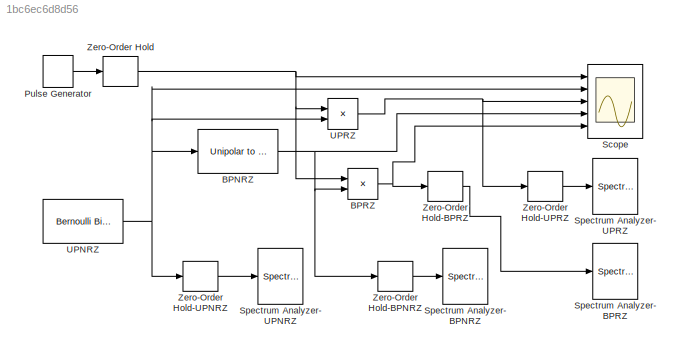
MODEL slx_1bc6ec6d8d56
KIND model
CONFIG AbsTol = auto
CONFIG EnableMultiTasking = off
CONFIG FixedStep = auto
CONFIG MaxStep = auto
CONFIG MinStep = auto
CONFIG RelTol = 1e-3
CONFIG SampleTimeConstraint = Unconstrained
CONFIG Solver = VariableStepAuto
CONFIG SolverName = VariableStepAuto
CONFIG StartTime = 0.0
CONFIG StopTime = 50
BLOCK [Reference] BPNRZ  REF=commutil2/Unipolar to
Bipolar
Converter
  Ports = [1, 1]
  SourceBlock = commutil2/Unipolar to\nBipolar\nConverter
  SourceProductBaseCode = CM
  SourceProductName = Communications System Toolbox
  SourceType = Unipolar to Bipolar Converter
BLOCK [Product] BPRZ
  InputSameDT = off
  OutDataTypeStr = Inherit: Inherit via internal rule
  Ports = [2, 1]
  RndMeth = Floor
  SaturateOnIntegerOverflow = off
BLOCK [DiscretePulseGenerator] Pulse Generator
  Period = 0.1
  Ports = [0, 1]
  PulseType = Time based
  PulseWidth = 50
  SampleTime = 0.1
BLOCK [Scope] Scope
  Floating = off
  NumInputPorts = 5
  Ports = [5]
  ScopeSpecificationString = Simulink.scopes.TimeScopeBlockCfg('CurrentConfiguration', extmgr.ConfigurationSet(extmgr.Configuration('Core','General UI',true),extmgr.Configuration('Core','Source UI',true),extmgr.Configuration('Sources','WiredSimulink',true),extmgr.Configuration('Visuals','Time Domain',true,'SerializedDisplays',{struct('MinYLimReal','-0.16667','MaxYLimReal','1.16667','YLabelReal','','MinYLimMag','0.00000','MaxY...<+4906ch>
BLOCK [SpectrumAnalyzer] Spectrum Analyzer- UPNRZ
  Ports = [1]
  ScopeSpecificationString = spbscopes.SpectrumAnalyzerBlockCfg('CurrentConfiguration', extmgr.ConfigurationSet(extmgr.Configuration('Core','General UI',true),extmgr.Configuration('Core','Source UI',true),extmgr.Configuration('Sources','WiredSimulink',true),extmgr.Configuration('Sources','SimulinkEvent',false),extmgr.Configuration('Sources','Simulink',false),extmgr.Configuration('Sources','SPTool',false),extmgr.Configuration(...<+3782ch>  <repeated x3 — deduplicated; at blocks: Spectrum Analyzer- UPNRZ, Spectrum Analyzer-BPRZ, Spectrum Analyzer-UPRZ>
BLOCK [SpectrumAnalyzer] Spectrum Analyzer-BPNRZ
  Ports = [1]
  ScopeSpecificationString = spbscopes.SpectrumAnalyzerBlockCfg('CurrentConfiguration', extmgr.ConfigurationSet(extmgr.Configuration('Core','General UI',true),extmgr.Configuration('Core','Source UI',true),extmgr.Configuration('Sources','WiredSimulink',true),extmgr.Configuration('Sources','SimulinkEvent',false),extmgr.Configuration('Sources','Simulink',false),extmgr.Configuration('Sources','SPTool',false),extmgr.Configuration(...<+3756ch>
BLOCK [SpectrumAnalyzer] Spectrum Analyzer-BPRZ
  Ports = [1]
BLOCK [SpectrumAnalyzer] Spectrum Analyzer-UPRZ
  Ports = [1]
BLOCK [Reference] UPNRZ  REF=commrandsrc3/Bernoulli Binary
Generator
  Ports = [0, 1]
  SourceBlock = commrandsrc3/Bernoulli Binary\nGenerator
  SourceProductBaseCode = CM
  SourceProductName = Communications System Toolbox
  SourceType = Bernoulli Binary Generator
BLOCK [Product] UPRZ
  InputSameDT = off
  OutDataTypeStr = Inherit: Inherit via internal rule
  Ports = [2, 1]
  RndMeth = Floor
  SaturateOnIntegerOverflow = off
BLOCK [ZeroOrderHold] Zero-Order Hold
  SampleTime = 0.05
BLOCK [ZeroOrderHold] Zero-Order Hold-BPNRZ
  SampleTime = 0.01
BLOCK [ZeroOrderHold] Zero-Order Hold-BPRZ
  SampleTime = 0.01
BLOCK [ZeroOrderHold] Zero-Order Hold-UPNRZ
  SampleTime = 0.01
BLOCK [ZeroOrderHold] Zero-Order Hold-UPRZ
  SampleTime = 0.01
NET BPNRZ:1 -> BPRZ:2, Scope:4, Zero-Order Hold-BPNRZ:1
NET BPRZ:1 -> Scope:5, Zero-Order Hold-BPRZ:1
LINE Pulse Generator:1 -> Zero-Order Hold:1
NET UPNRZ:1 -> BPNRZ:1, Scope:2, UPRZ:2, Zero-Order Hold-UPNRZ:1
NET UPRZ:1 -> Scope:3, Zero-Order Hold-UPRZ:1
LINE Zero-Order Hold-BPNRZ:1 -> Spectrum Analyzer-BPNRZ:1
LINE Zero-Order Hold-BPRZ:1 -> Spectrum Analyzer-BPRZ:1
LINE Zero-Order Hold-UPNRZ:1 -> Spectrum Analyzer- UPNRZ:1
LINE Zero-Order Hold-UPRZ:1 -> Spectrum Analyzer-UPRZ:1
NET Zero-Order Hold:1 -> BPRZ:1, Scope:1, UPRZ:1
note: NET lines group one-source signal fan-out (src -> all destinations, sorted); 1:1 wires keep LINE
